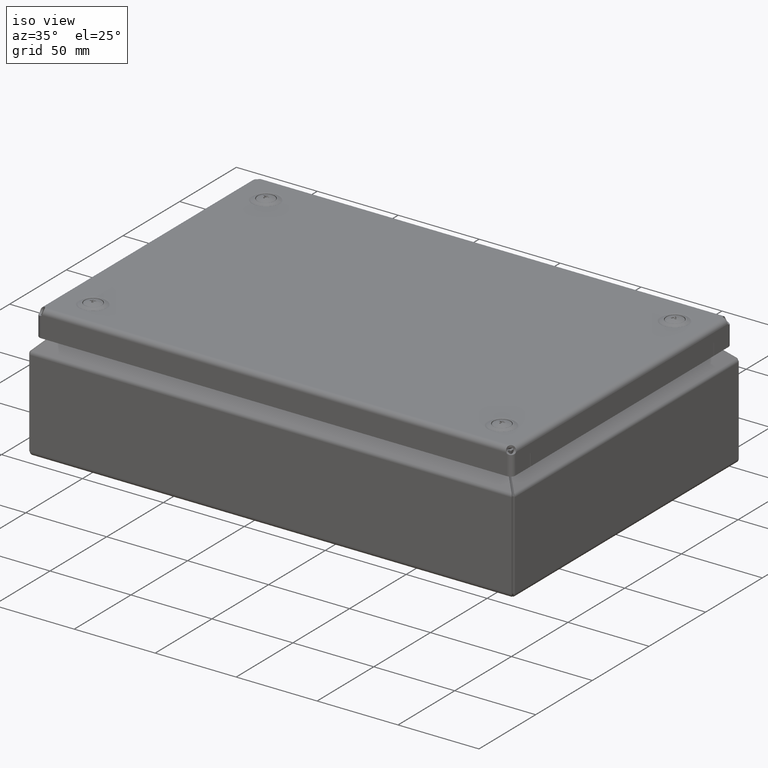
[diagram: clean part render]
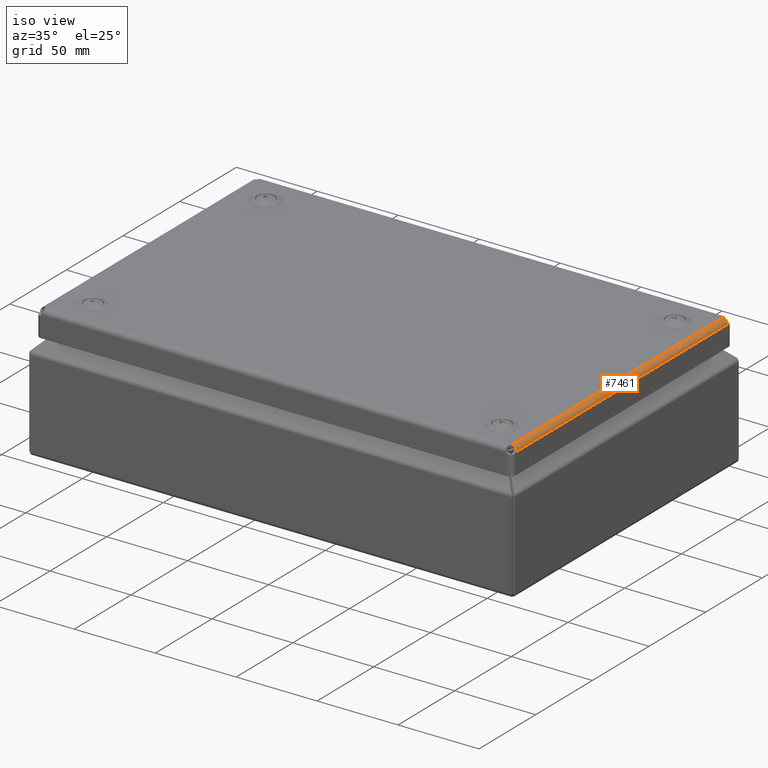
[diagram: same view with one face highlighted and labeled with its STEP entity id]
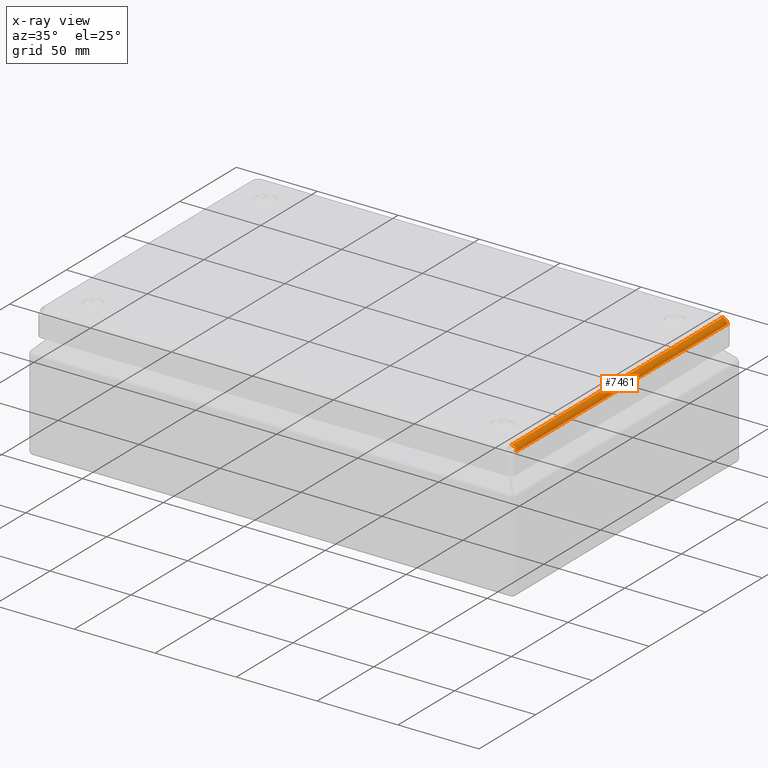
[diagram: x-ray of the same camera — body ghosted, the highlighted face saturated]
A machine part, iso view. The second image highlights one B-rep face of the part: STEP entity #7461.
The next image is the same camera in x-ray: the body ghosted, the highlighted face saturated — about 0% of this face is hidden behind the body in this view.
In plain terms, the highlighted cylindrical surface (edge-blend (fillet) strip) has radius 3 mm, axis along (0, -1, -0).
Its self-contained STEP definition (entity closure, byte-faithful):
#6956 = VERTEX_POINT ( 'NONE', #16697 ) ;
#7021 = EDGE_CURVE ( 'NONE', #7022, #6956, #16844, .T. ) ;
#7022 = VERTEX_POINT ( 'NONE', #16840 ) ;
#7041 = VERTEX_POINT ( 'NONE', #16871 ) ;
#7043 = EDGE_CURVE ( 'NONE', #7041, #7044, #16870, .T. ) ;
#7044 = VERTEX_POINT ( 'NONE', #16866 ) ;
#7383 = EDGE_LOOP ( 'NONE', ( #7384, #7438, #7439, #7440 ) ) ;
#7384 = ORIENTED_EDGE ( 'NONE', *, *, #7460, .F. ) ;
#7438 = ORIENTED_EDGE ( 'NONE', *, *, #7021, .T. ) ;
#7439 = ORIENTED_EDGE ( 'NONE', *, *, #7451, .T. ) ;
#7440 = ORIENTED_EDGE ( 'NONE', *, *, #7043, .F. ) ;
#7451 = EDGE_CURVE ( 'NONE', #6956, #7044, #17804, .T. ) ;
#7460 = EDGE_CURVE ( 'NONE', #7022, #7041, #17954, .T. ) ;
#7461 = ADVANCED_FACE ( 'NONE', ( #17953 ), #17955, .T. ) ;
#16697 = CARTESIAN_POINT ( 'NONE',  ( 147.0000000000000000, -93.49999999999991500, 3.000000000000014200 ) ) ;
#16840 = CARTESIAN_POINT ( 'NONE',  ( 147.0000000000000000, 93.49999999999991500, 3.000000000000002700 ) ) ;
#16841 = DIRECTION ( 'NONE',  ( 0.0000000000000000000, -1.000000000000000000, 0.0000000000000000000 ) ) ;
#16842 = VECTOR ( 'NONE', #16841, 1000.000000000000000 ) ;
#16843 = CARTESIAN_POINT ( 'NONE',  ( 147.0000000000000000, -109.9999999999999900, 2.999999999999975100 ) ) ;
#16844 = LINE ( 'NONE', #16843, #16842 ) ;
#16866 = CARTESIAN_POINT ( 'NONE',  ( 143.9999999999999700, -93.50000000000005700, 0.0000000000000000000 ) ) ;
#16867 = DIRECTION ( 'NONE',  ( 0.0000000000000000000, -1.000000000000000000, 0.0000000000000000000 ) ) ;
#16868 = VECTOR ( 'NONE', #16867, 1000.000000000000000 ) ;
#16869 = CARTESIAN_POINT ( 'NONE',  ( 143.9999999999999700, -109.9999999999999900, 0.0000000000000000000 ) ) ;
#16870 = LINE ( 'NONE', #16869, #16868 ) ;
#16871 = CARTESIAN_POINT ( 'NONE',  ( 144.0000000000000000, 93.50000000000004300, 0.0000000000000000000 ) ) ;
#17804 = B_SPLINE_CURVE_WITH_KNOTS ( 'NONE', 3,
 ( #17815, #17814, #17813, #17812, #17811, #17810, #17809, #17808, #17807, #17806, #17872, #17871, #17870, #17869, #17868, #17867, #17866, #17865, #17864, #17863, #17862, #17861, #17860, #17859, #17858, #17857, #17856, #17855, #17854 ),
 .UNSPECIFIED., .F., .F.,
 ( 4, 2, 2, 2, 1, 2, 2, 2, 2, 2, 2, 2, 2, 2, 4 ),
 ( 0.0000000000000000000, 0.06250000000000158200, 0.07031249999999851500, 0.07812499999999544800, 0.09374999999999460200, 0.1249999999999950900, 0.2499999999999887900, 0.3749999999999825100, 0.4999999999999762400, 0.7499999999999521500, 0.8749999999999477100, 0.8906249999999492600, 0.9062499999999508200, 0.9374999999999716900, 1.000000000000000000 ),
 .UNSPECIFIED. ) ;
#17806 = CARTESIAN_POINT ( 'NONE',  ( 146.9608286694561600, -93.30093589854081400, 2.514558577249698300 ) ) ;
#17807 = CARTESIAN_POINT ( 'NONE',  ( 146.9714791184484900, -93.32512894956943200, 2.582909236578793300 ) ) ;
#17808 = CARTESIAN_POINT ( 'NONE',  ( 146.9796872763250200, -93.35073566495442800, 2.650746108137355800 ) ) ;
#17809 = CARTESIAN_POINT ( 'NONE',  ( 146.9833927012711600, -93.36377463337299800, 2.684569141615937000 ) ) ;
#17810 = CARTESIAN_POINT ( 'NONE',  ( 146.9847060205555400, -93.36875220910164300, 2.697338302486091500 ) ) ;
#17811 = CARTESIAN_POINT ( 'NONE',  ( 146.9863941173610200, -93.37550603939065800, 2.714475380966565200 ) ) ;
#17812 = CARTESIAN_POINT ( 'NONE',  ( 146.9872263621005300, -93.37903395933703600, 2.723301868768708300 ) ) ;
#17813 = CARTESIAN_POINT ( 'NONE',  ( 146.9945491387582300, -93.41214428207115400, 2.805064400637225800 ) ) ;
#17814 = CARTESIAN_POINT ( 'NONE',  ( 147.0000000000000000, -93.45123998737604200, 2.894322306650939600 ) ) ;
#17815 = CARTESIAN_POINT ( 'NONE',  ( 147.0000000000000000, -93.49999999999991500, 3.000000000000014200 ) ) ;
#17854 = CARTESIAN_POINT ( 'NONE',  ( 143.9999999999999700, -93.50000000000005700, 0.0000000000000000000 ) ) ;
#17855 = CARTESIAN_POINT ( 'NONE',  ( 144.0933140689085100, -93.45659639318094500, -2.181956872127069000E-015 ) ) ;
#17856 = CARTESIAN_POINT ( 'NONE',  ( 144.1836978571026600, -93.41728129396899800, 0.004351920356910163300 ) ) ;
#17857 = CARTESIAN_POINT ( 'NONE',  ( 144.3143784195292200, -93.36444140656199400, 0.01619717654170672900 ) ) ;
#17858 = CARTESIAN_POINT ( 'NONE',  ( 144.3571250076714400, -93.34785023766154700, 0.02103217597401144500 ) ) ;
#17859 = CARTESIAN_POINT ( 'NONE',  ( 144.4199809645798800, -93.32449667466347900, 0.02946757612172814400 ) ) ;
#17860 = CARTESIAN_POINT ( 'NONE',  ( 144.4394181997878700, -93.31743322378791600, 0.03226632574795126200 ) ) ;
#17861 = CARTESIAN_POINT ( 'NONE',  ( 144.4849769261739700, -93.30127924327257500, 0.03937018580957502700 ) ) ;
#17862 = CARTESIAN_POINT ( 'NONE',  ( 144.5078323821000200, -93.29335362951823600, 0.04320295523681522800 ) ) ;
#17863 = CARTESIAN_POINT ( 'NONE',  ( 144.7141488341537800, -93.22338549425676000, 0.08028923600633311500 ) ) ;
#17864 = CARTESIAN_POINT ( 'NONE',  ( 144.9032098384633400, -93.17061746014177000, 0.1321728438876927400 ) ) ;
#17865 = CARTESIAN_POINT ( 'NONE',  ( 145.4637405662966500, -93.04264924359522100, 0.3507838908262196900 ) ) ;
#17866 = CARTESIAN_POINT ( 'NONE',  ( 145.8201111809618700, -92.99999546715534400, 0.5774721914959855000 ) ) ;
#17867 = CARTESIAN_POINT ( 'NONE',  ( 146.2719159577069900, -93.00000235438244500, 1.029274421786255700 ) ) ;
#17868 = CARTESIAN_POINT ( 'NONE',  ( 146.4034425176996000, -93.01071958949603400, 1.192675535933329000 ) ) ;
#17869 = CARTESIAN_POINT ( 'NONE',  ( 146.6291483927811000, -93.05358400394629800, 1.540364297834383400 ) ) ;
#17870 = CARTESIAN_POINT ( 'NONE',  ( 146.7230186224384200, -93.08596335719515500, 1.725209282371816100 ) ) ;
#17871 = CARTESIAN_POINT ( 'NONE',  ( 146.8680239786365000, -93.17073339846480500, 2.097580890127370700 ) ) ;
#17872 = CARTESIAN_POINT ( 'NONE',  ( 146.9196856446995400, -93.22343387145967600, 2.285862553243158700 ) ) ;
#17926 = DIRECTION ( 'NONE',  ( 0.0000000000000000000, 0.0000000000000000000, 1.000000000000000000 ) ) ;
#17927 = DIRECTION ( 'NONE',  ( 0.0000000000000000000, 1.000000000000000000, 0.0000000000000000000 ) ) ;
#17928 = CARTESIAN_POINT ( 'NONE',  ( 144.0000000000000000, -498.3588063891446600, 3.000000000000000000 ) ) ;
#17929 = AXIS2_PLACEMENT_3D ( 'NONE', #17928, #17927, #17926 ) ;
#17953 = FACE_OUTER_BOUND ( 'NONE', #7383, .T. ) ;
#17954 = B_SPLINE_CURVE_WITH_KNOTS ( 'NONE', 3,
 ( #17999, #17998, #17997, #17996, #17995, #17994, #17993, #17992, #17991, #17990, #17989, #17988, #17987, #17986, #17985, #17984, #17983, #17982, #17981, #17980, #17979, #17978, #17977, #17976, #17975, #17974, #17973, #17972, #17971, #17970 ),
 .UNSPECIFIED., .F., .F.,
 ( 4, 2, 2, 2, 2, 2, 2, 2, 2, 2, 2, 2, 2, 2, 4 ),
 ( 0.0000000000000000000, 0.06250000000000000000, 0.07031250000000000000, 0.07812500000000000000, 0.09375000000000000000, 0.1250000000000000000, 0.2500000000000000000, 0.3750000000000000000, 0.5000000000000000000, 0.7500000000000000000, 0.8750000000000000000, 0.8906250000000000000, 0.9062500000000000000, 0.9375000000000000000, 1.000000000000000000 ),
 .UNSPECIFIED. ) ;
#17955 = CYLINDRICAL_SURFACE ( 'NONE', #17929, 3.000000000000000900 ) ;
#17970 = CARTESIAN_POINT ( 'NONE',  ( 144.0000000000000000, 93.50000000000004300, 0.0000000000000000000 ) ) ;
#17971 = CARTESIAN_POINT ( 'NONE',  ( 144.0933177308963900, 93.45659468986389100, -8.600863669873026400E-016 ) ) ;
#17972 = CARTESIAN_POINT ( 'NONE',  ( 144.1836978574139300, 93.41728129382458700, 0.004351920377073974900 ) ) ;
#17973 = CARTESIAN_POINT ( 'NONE',  ( 144.3143784197846200, 93.36444140644310600, 0.01619717656889057100 ) ) ;
#17974 = CARTESIAN_POINT ( 'NONE',  ( 144.3571250078762500, 93.34785023756592200, 0.02103217599973646700 ) ) ;
#17975 = CARTESIAN_POINT ( 'NONE',  ( 144.4199809646616800, 93.32449667462519500, 0.02946757613357830000 ) ) ;
#17976 = CARTESIAN_POINT ( 'NONE',  ( 144.4394181997547500, 93.31743322379625700, 0.03226632574257692200 ) ) ;
#17977 = CARTESIAN_POINT ( 'NONE',  ( 144.4849769262590700, 93.30127924325150000, 0.03937018582304056100 ) ) ;
#17978 = CARTESIAN_POINT ( 'NONE',  ( 144.5078323822350200, 93.29335362948451400, 0.04320295525966060700 ) ) ;
#17979 = CARTESIAN_POINT ( 'NONE',  ( 144.7141488346552800, 93.22338549413126400, 0.08028923610774316200 ) ) ;
#17980 = CARTESIAN_POINT ( 'NONE',  ( 144.9032098384576800, 93.17061746014171300, 0.1321728439020426500 ) ) ;
#17981 = CARTESIAN_POINT ( 'NONE',  ( 145.4637405656639000, 93.04264924376472800, 0.3507838905463461200 ) ) ;
#17982 = CARTESIAN_POINT ( 'NONE',  ( 145.8201111805273900, 92.99999546730605000, 0.5774721910615028300 ) ) ;
#17983 = CARTESIAN_POINT ( 'NONE',  ( 146.2719159579242200, 93.00000235430707100, 1.029274422003503100 ) ) ;
#17984 = CARTESIAN_POINT ( 'NONE',  ( 146.4034425177170000, 93.01071958938979400, 1.192675535956964300 ) ) ;
#17985 = CARTESIAN_POINT ( 'NONE',  ( 146.6291483927917600, 93.05358400386497000, 1.540364297854172500 ) ) ;
#17986 = CARTESIAN_POINT ( 'NONE',  ( 146.7230186224434500, 93.08596335720780200, 1.725209282378328700 ) ) ;
#17987 = CARTESIAN_POINT ( 'NONE',  ( 146.8680239786572500, 93.17073339856592900, 2.097580890187268600 ) ) ;
#17988 = CARTESIAN_POINT ( 'NONE',  ( 146.9196856446988000, 93.22343387146861500, 2.285862553232183000 ) ) ;
#17989 = CARTESIAN_POINT ( 'NONE',  ( 146.9608286694607400, 93.30093589851794900, 2.514558577276730900 ) ) ;
#17990 = CARTESIAN_POINT ( 'NONE',  ( 146.9679289687883900, 93.31706459920295100, 2.560125683497170600 ) ) ;
#17991 = CARTESIAN_POINT ( 'NONE',  ( 146.9769512009154400, 93.34220009314303500, 2.628133771510461800 ) ) ;
#17992 = CARTESIAN_POINT ( 'NONE',  ( 146.9796872763267300, 93.35073566494185100, 2.650746108152433500 ) ) ;
#17993 = CARTESIAN_POINT ( 'NONE',  ( 146.9833927012717000, 93.36377463336820900, 2.684569141621728300 ) ) ;
#17994 = CARTESIAN_POINT ( 'NONE',  ( 146.9847060205528900, 93.36875220908886800, 2.697338302458885300 ) ) ;
#17995 = CARTESIAN_POINT ( 'NONE',  ( 146.9863941173677200, 93.37550603942261800, 2.714475381035732000 ) ) ;
#17996 = CARTESIAN_POINT ( 'NONE',  ( 146.9872263621110200, 93.37903395938880600, 2.723301868880662300 ) ) ;
#17997 = CARTESIAN_POINT ( 'NONE',  ( 146.9945491387946400, 93.41214428227866100, 2.805064401085541400 ) ) ;
#17998 = CARTESIAN_POINT ( 'NONE',  ( 147.0000000000000000, 93.45123144187640200, 2.894303785968904500 ) ) ;
#17999 = CARTESIAN_POINT ( 'NONE',  ( 147.0000000000000000, 93.49999999999991500, 3.000000000000002700 ) ) ;